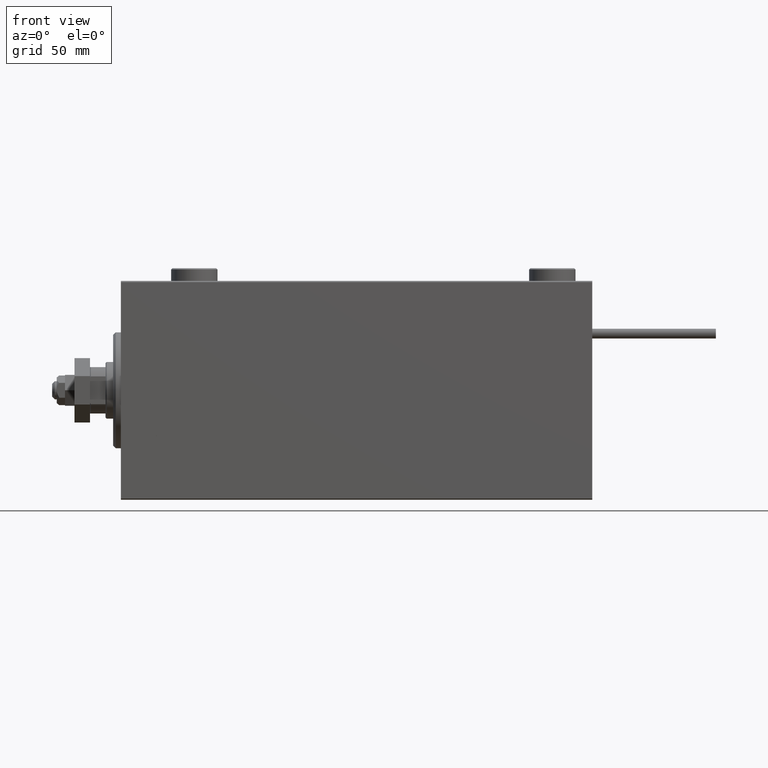
[diagram: clean part render]
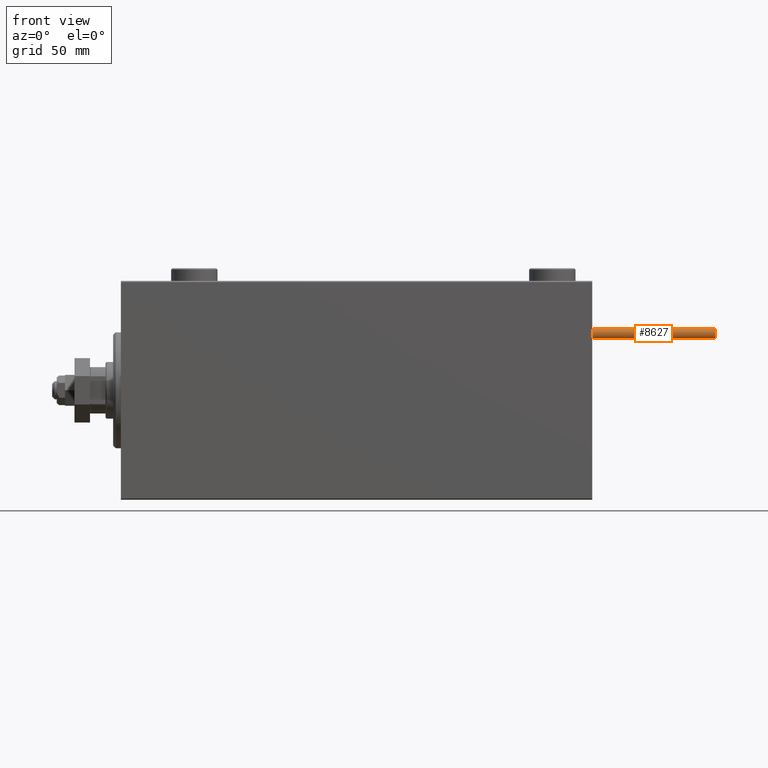
[diagram: same view with one face highlighted and labeled with its STEP entity id]
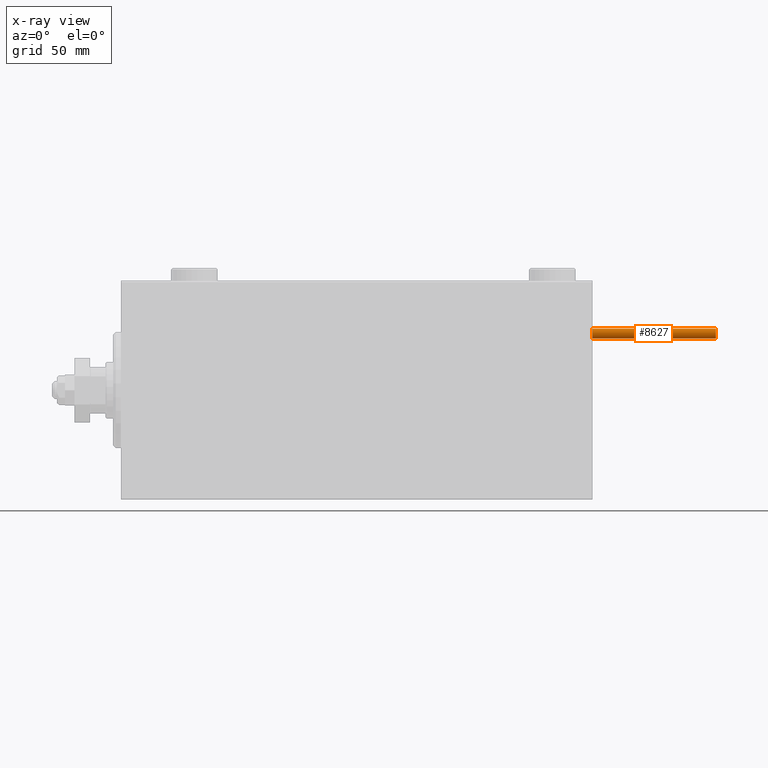
[diagram: x-ray of the same camera — body ghosted, the highlighted face saturated]
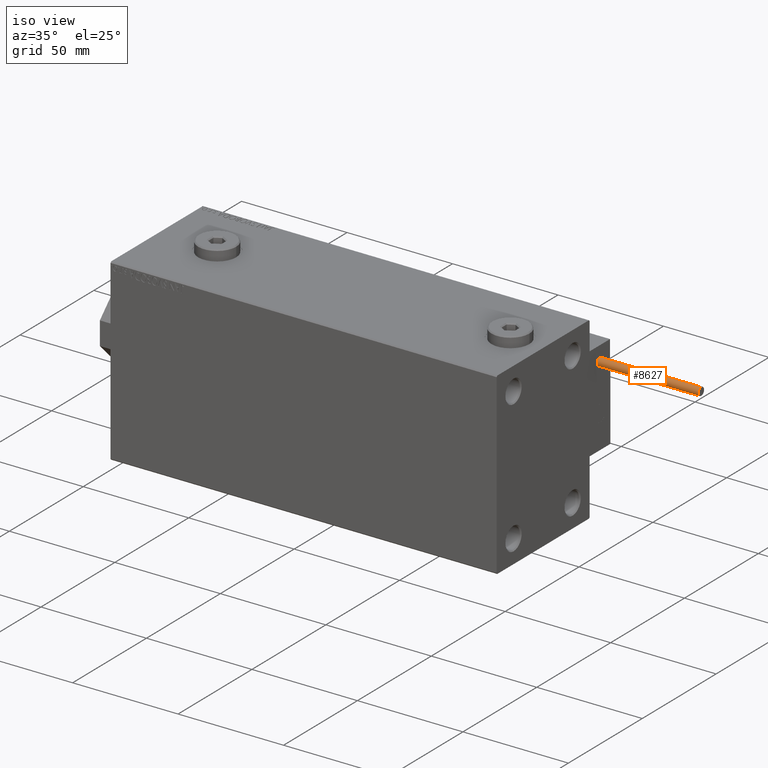
[diagram: same view with one face highlighted and labeled with its STEP entity id]
A machine part, front view. The second image highlights one B-rep face of the part: STEP entity #8627.
The next image is the same camera in x-ray: the body ghosted, the highlighted face saturated — about 0% of this face is hidden behind the body in this view.
A second angle (iso view) of the same face is appended — the face is thin or edge-on in the first view.
In plain terms, the highlighted cylindrical surface (edge-blend (fillet) strip) has radius 1.9 mm, axis along (-1, -0, -0).
Its self-contained STEP definition (entity closure, byte-faithful):
#2204 = DIRECTION ( 'NONE',  ( 1.000000000000000000, 0.000000000000000000, 0.000000000000000000 ) ) ;
#6765 = EDGE_CURVE ( 'NONE', #49750, #21866, #16966, .T. ) ;
#7371 = DIRECTION ( 'NONE',  ( -0.000000000000000000, -0.000000000000000000, -1.000000000000000000 ) ) ;
#7948 = VERTEX_POINT ( 'NONE', #8728 ) ;
#8059 = DIRECTION ( 'NONE',  ( -1.000000000000000000, 0.000000000000000000, 0.000000000000000000 ) ) ;
#8627 = ADVANCED_FACE ( 'NONE', ( #35940 ), #27691, .T. ) ;
#8728 = CARTESIAN_POINT ( 'NONE',  ( -1.899999999999999467, 0.000000000000000000, 48.00000000000000000 ) ) ;
#10729 = VERTEX_POINT ( 'NONE', #41308 ) ;
#14301 = AXIS2_PLACEMENT_3D ( 'NONE', #26451, #35228, #15047 ) ;
#15047 = DIRECTION ( 'NONE',  ( 1.000000000000000000, 0.000000000000000000, 0.000000000000000000 ) ) ;
#15263 = AXIS2_PLACEMENT_3D ( 'NONE', #22395, #31131, #2204 ) ;
#16847 = CARTESIAN_POINT ( 'NONE',  ( -1.899999999999999467, 0.000000000000000000, 0.000000000000000000 ) ) ;
#16966 = CIRCLE ( 'NONE', #15263, 1.899999999999999467 ) ;
#20889 = ORIENTED_EDGE ( 'NONE', *, *, #37626, .F. ) ;
#21083 = CIRCLE ( 'NONE', #14301, 1.899999999999999467 ) ;
#21866 = VERTEX_POINT ( 'NONE', #45054 ) ;
#22395 = CARTESIAN_POINT ( 'NONE',  ( 0.000000000000000000, 0.000000000000000000, 0.000000000000000000 ) ) ;
#23100 = EDGE_CURVE ( 'NONE', #7948, #49750, #36649, .T. ) ;
#24100 = VECTOR ( 'NONE', #44903, 1000.000000000000000 ) ;
#24527 = AXIS2_PLACEMENT_3D ( 'NONE', #27954, #44191, #8059 ) ;
#26451 = CARTESIAN_POINT ( 'NONE',  ( 0.000000000000000000, 0.000000000000000000, 48.00000000000000000 ) ) ;
#27691 = CYLINDRICAL_SURFACE ( 'NONE', #24527, 1.899999999999999467 ) ;
#27954 = CARTESIAN_POINT ( 'NONE',  ( 0.000000000000000000, 0.000000000000000000, 48.00000000000000000 ) ) ;
#31001 = CARTESIAN_POINT ( 'NONE',  ( 1.899999999999999467, 2.326828918379970872E-16, 48.00000000000000000 ) ) ;
#31131 = DIRECTION ( 'NONE',  ( 0.000000000000000000, 0.000000000000000000, 1.000000000000000000 ) ) ;
#32133 = CARTESIAN_POINT ( 'NONE',  ( -1.899999999999999467, 0.000000000000000000, 48.00000000000000000 ) ) ;
#35228 = DIRECTION ( 'NONE',  ( 0.000000000000000000, 0.000000000000000000, 1.000000000000000000 ) ) ;
#35940 = FACE_OUTER_BOUND ( 'NONE', #48862, .T. ) ;
#36649 = LINE ( 'NONE', #32133, #24100 ) ;
#37626 = EDGE_CURVE ( 'NONE', #7948, #10729, #21083, .T. ) ;
#41308 = CARTESIAN_POINT ( 'NONE',  ( 1.899999999999999467, 2.326828918379970872E-16, 48.00000000000000000 ) ) ;
#43339 = EDGE_CURVE ( 'NONE', #10729, #21866, #51757, .T. ) ;
#43345 = VECTOR ( 'NONE', #7371, 1000.000000000000000 ) ;
#44191 = DIRECTION ( 'NONE',  ( -0.000000000000000000, -0.000000000000000000, -1.000000000000000000 ) ) ;
#44903 = DIRECTION ( 'NONE',  ( -0.000000000000000000, -0.000000000000000000, -1.000000000000000000 ) ) ;
#45054 = CARTESIAN_POINT ( 'NONE',  ( 1.899999999999999467, 2.326828918379970872E-16, 0.000000000000000000 ) ) ;
#47691 = ORIENTED_EDGE ( 'NONE', *, *, #6765, .T. ) ;
#48862 = EDGE_LOOP ( 'NONE', ( #52168, #20889, #51184, #47691 ) ) ;
#49750 = VERTEX_POINT ( 'NONE', #16847 ) ;
#51184 = ORIENTED_EDGE ( 'NONE', *, *, #23100, .T. ) ;
#51757 = LINE ( 'NONE', #31001, #43345 ) ;
#52168 = ORIENTED_EDGE ( 'NONE', *, *, #43339, .F. ) ;